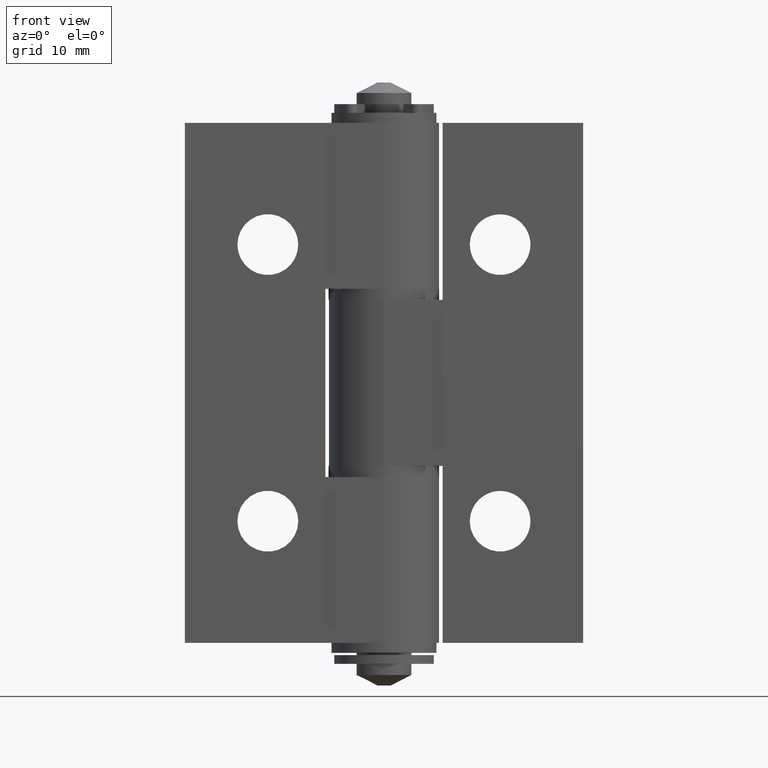
[diagram: clean part render]
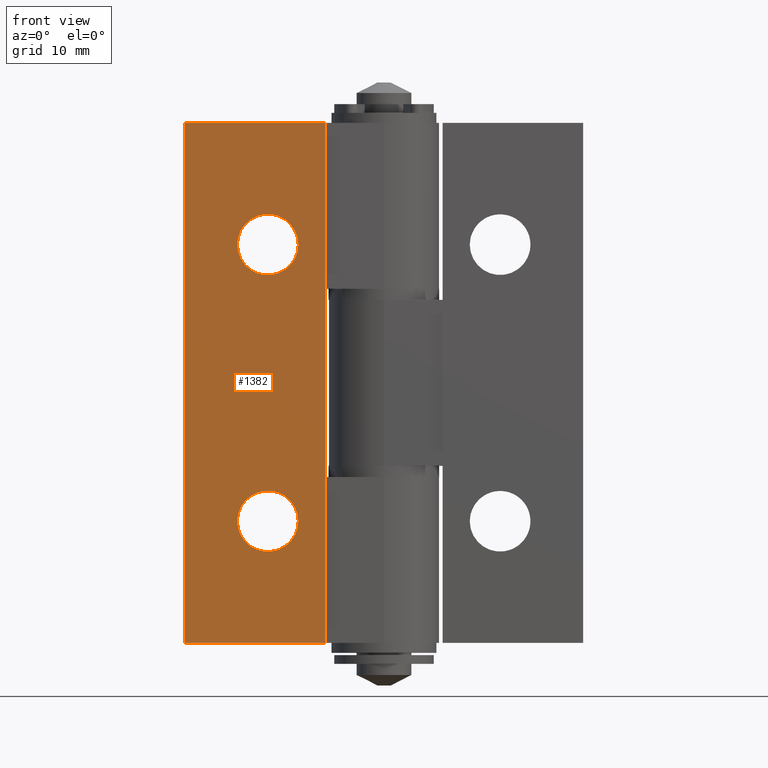
[diagram: same view with one face highlighted and labeled with its STEP entity id]
A machine part, front view. The second image highlights one B-rep face of the part: STEP entity #1382.
In plain terms, the highlighted planar face has unit normal (-0, -1, 0).
Its self-contained STEP definition (entity closure, byte-faithful):
#128=FACE_BOUND('',#261,.T.);
#129=FACE_BOUND('',#262,.T.);
#165=FACE_OUTER_BOUND('',#260,.T.);
#260=EDGE_LOOP('',(#1013,#1014,#1015,#1016));
#261=EDGE_LOOP('',(#1017));
#262=EDGE_LOOP('',(#1018));
#365=CIRCLE('',#1481,2.75);
#367=CIRCLE('',#1485,2.75);
#446=LINE('',#2151,#552);
#450=LINE('',#2175,#556);
#451=LINE('',#2178,#557);
#452=LINE('',#2179,#558);
#552=VECTOR('',#1689,12.7);
#556=VECTOR('',#1717,47.);
#557=VECTOR('',#1720,12.7);
#558=VECTOR('',#1721,47.);
#662=VERTEX_POINT('',#2148);
#663=VERTEX_POINT('',#2150);
#667=VERTEX_POINT('',#2161);
#669=VERTEX_POINT('',#2167);
#671=VERTEX_POINT('',#2173);
#672=VERTEX_POINT('',#2177);
#800=EDGE_CURVE('',#662,#663,#446,.T.);
#805=EDGE_CURVE('',#667,#667,#365,.T.);
#807=EDGE_CURVE('',#669,#669,#367,.T.);
#810=EDGE_CURVE('',#662,#671,#450,.T.);
#811=EDGE_CURVE('',#672,#671,#451,.T.);
#812=EDGE_CURVE('',#663,#672,#452,.T.);
#1013=ORIENTED_EDGE('',*,*,#810,.T.);
#1014=ORIENTED_EDGE('',*,*,#811,.F.);
#1015=ORIENTED_EDGE('',*,*,#812,.F.);
#1016=ORIENTED_EDGE('',*,*,#800,.F.);
#1017=ORIENTED_EDGE('',*,*,#805,.T.);
#1018=ORIENTED_EDGE('',*,*,#807,.T.);
#1331=PLANE('',#1489);
#1382=ADVANCED_FACE('',(#165,#128,#129),#1331,.T.);
#1481=AXIS2_PLACEMENT_3D('',#2162,#1700,#1701);
#1485=AXIS2_PLACEMENT_3D('',#2168,#1708,#1709);
#1489=AXIS2_PLACEMENT_3D('',#2176,#1718,#1719);
#1689=DIRECTION('',(-1.,-8.74191357972564E-17,0.));
#1700=DIRECTION('center_axis',(-8.74191357972564E-17,1.,0.));
#1701=DIRECTION('ref_axis',(1.,8.74191357972564E-17,0.));
#1708=DIRECTION('center_axis',(-8.74191357972564E-17,1.,0.));
#1709=DIRECTION('ref_axis',(1.,8.74191357972564E-17,0.));
#1717=DIRECTION('',(0.,0.,1.));
#1718=DIRECTION('center_axis',(8.74191357972564E-17,-1.,0.));
#1719=DIRECTION('ref_axis',(1.,0.,0.));
#1720=DIRECTION('',(1.,8.74191357972564E-17,0.));
#1721=DIRECTION('',(0.,0.,1.));
#2148=CARTESIAN_POINT('',(18.,-5.2,-23.5));
#2150=CARTESIAN_POINT('',(5.3,-5.2,-23.5));
#2151=CARTESIAN_POINT('',(5.3,-5.2,-23.5));
#2161=CARTESIAN_POINT('',(7.75,-5.2,12.5));
#2162=CARTESIAN_POINT('Origin',(10.5,-5.2,12.5));
#2167=CARTESIAN_POINT('',(7.75,-5.2,-12.5));
#2168=CARTESIAN_POINT('Origin',(10.5,-5.2,-12.5));
#2173=CARTESIAN_POINT('',(18.,-5.2,23.5));
#2175=CARTESIAN_POINT('',(18.,-5.2,0.));
#2176=CARTESIAN_POINT('Origin',(5.3,-5.2,0.));
#2177=CARTESIAN_POINT('',(5.3,-5.2,23.5));
#2178=CARTESIAN_POINT('',(5.3,-5.2,23.5));
#2179=CARTESIAN_POINT('',(5.3,-5.2,0.));